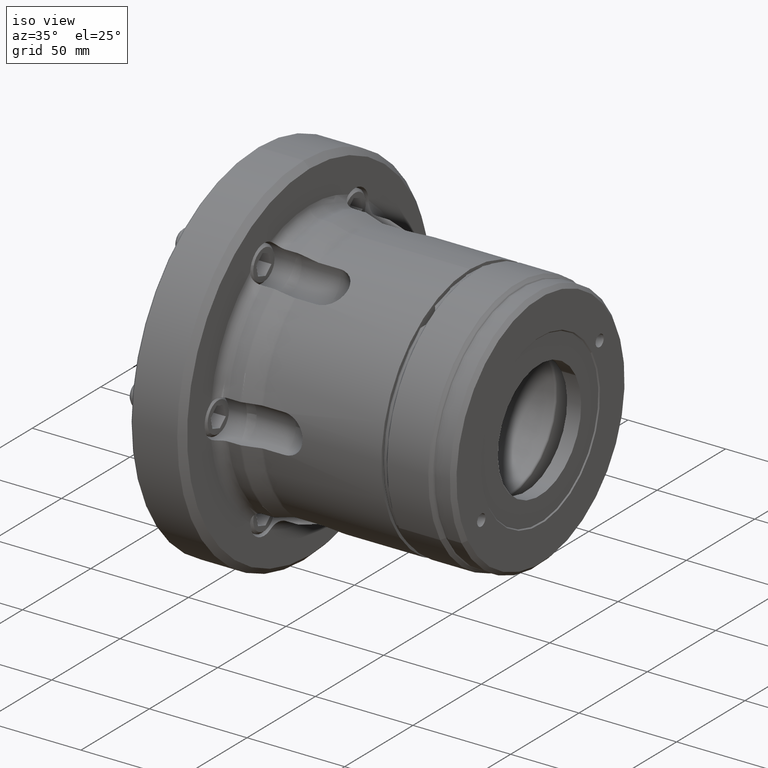
[diagram: clean part render]
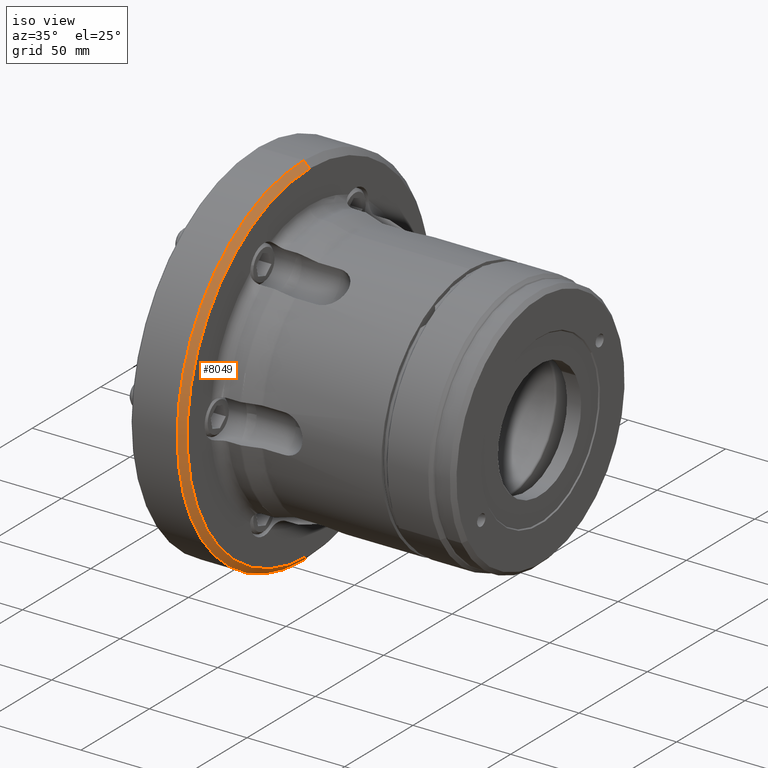
[diagram: same view with one face highlighted and labeled with its STEP entity id]
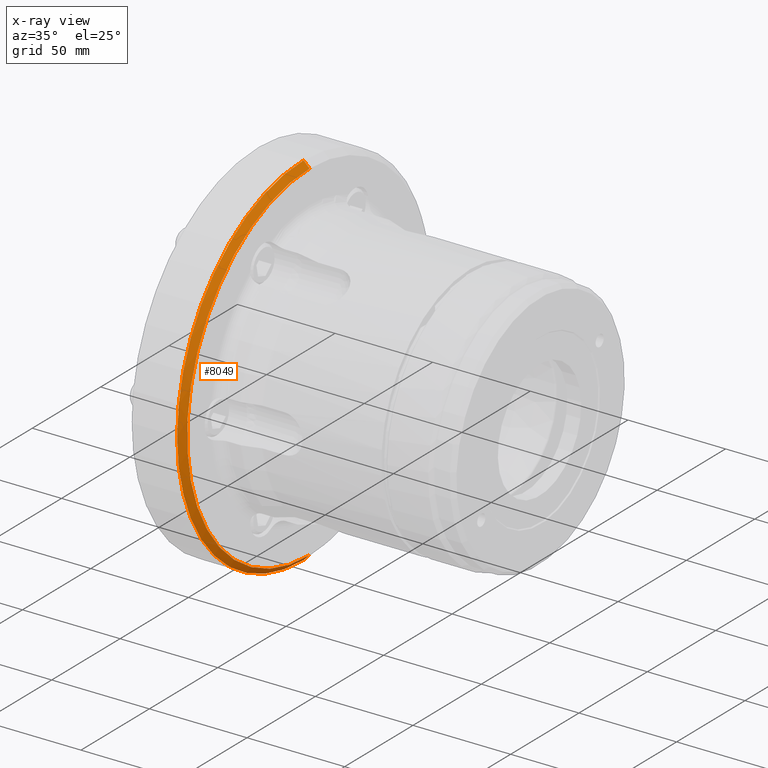
[diagram: x-ray of the same camera — body ghosted, the highlighted face saturated]
A machine part, iso view. The second image highlights one B-rep face of the part: STEP entity #8049.
The next image is the same camera in x-ray: the body ghosted, the highlighted face saturated — about 0% of this face is hidden behind the body in this view.
In plain terms, the highlighted conical surface has half-angle 45 deg.
Its self-contained STEP definition (entity closure, byte-faithful):
#1031 = EDGE_CURVE ( 'NONE', #8879, #3889, #10322, .T. ) ;
#1171 = EDGE_LOOP ( 'NONE', ( #6855, #1667, #11069, #11230 ) ) ;
#1667 = ORIENTED_EDGE ( 'NONE', *, *, #1031, .F. ) ;
#3048 = EDGE_CURVE ( 'NONE', #11462, #11302, #5226, .T. ) ;
#3049 = AXIS2_PLACEMENT_3D ( 'NONE', #8001, #7072, #6986 ) ;
#3137 = DIRECTION ( 'NONE',  ( -0.7071067811865459100, 8.659560562354952600E-017, -0.7071067811865491300 ) ) ;
#3258 = CARTESIAN_POINT ( 'NONE',  ( 27.00000000000000400, 0.0000000000000000000, 0.0000000000000000000 ) ) ;
#3771 = AXIS2_PLACEMENT_3D ( 'NONE', #9644, #10245, #11785 ) ;
#3797 = DIRECTION ( 'NONE',  ( -0.7071067811865459100, 0.0000000000000000000, 0.7071067811865491300 ) ) ;
#3889 = VERTEX_POINT ( 'NONE', #8670 ) ;
#4164 = DIRECTION ( 'NONE',  ( 0.0000000000000000000, 0.0000000000000000000, 1.000000000000000000 ) ) ;
#5041 = VECTOR ( 'NONE', #3137, 1000.000000000000100 ) ;
#5226 = CIRCLE ( 'NONE', #3771, 92.50000000000000000 ) ;
#6753 = CARTESIAN_POINT ( 'NONE',  ( 24.00000000000002800, 1.132798289211301500E-014, -92.50000000000000000 ) ) ;
#6789 = EDGE_CURVE ( 'NONE', #3889, #11462, #7484, .T. ) ;
#6855 = ORIENTED_EDGE ( 'NONE', *, *, #6789, .F. ) ;
#6986 = DIRECTION ( 'NONE',  ( 0.0000000000000000000, 0.0000000000000000000, 1.000000000000000000 ) ) ;
#7072 = DIRECTION ( 'NONE',  ( -1.000000000000000000, -0.0000000000000000000, -0.0000000000000000000 ) ) ;
#7484 = LINE ( 'NONE', #6753, #5041 ) ;
#8001 = CARTESIAN_POINT ( 'NONE',  ( 24.00000000000002800, 0.0000000000000000000, 0.0000000000000000000 ) ) ;
#8049 = ADVANCED_FACE ( 'NONE', ( #9667 ), #11546, .T. ) ;
#8670 = CARTESIAN_POINT ( 'NONE',  ( 27.00000000000000400, 1.114428587224091300E-014, -89.50000000000001400 ) ) ;
#8712 = EDGE_CURVE ( 'NONE', #8879, #11302, #11536, .T. ) ;
#8879 = VERTEX_POINT ( 'NONE', #11356 ) ;
#9051 = VECTOR ( 'NONE', #3797, 1000.000000000000100 ) ;
#9292 = CARTESIAN_POINT ( 'NONE',  ( 24.00000000000002800, 0.0000000000000000000, 92.50000000000000000 ) ) ;
#9299 = CARTESIAN_POINT ( 'NONE',  ( 24.00000000000002800, 1.132798289211301700E-014, -92.50000000000000000 ) ) ;
#9644 = CARTESIAN_POINT ( 'NONE',  ( 24.00000000000002800, 0.0000000000000000000, 0.0000000000000000000 ) ) ;
#9667 = FACE_OUTER_BOUND ( 'NONE', #1171, .T. ) ;
#9694 = DIRECTION ( 'NONE',  ( 1.000000000000000000, 0.0000000000000000000, 0.0000000000000000000 ) ) ;
#10054 = CARTESIAN_POINT ( 'NONE',  ( 24.00000000000002800, 0.0000000000000000000, 92.50000000000000000 ) ) ;
#10245 = DIRECTION ( 'NONE',  ( -1.000000000000000000, -0.0000000000000000000, -0.0000000000000000000 ) ) ;
#10322 = CIRCLE ( 'NONE', #10703, 89.50000000000001400 ) ;
#10703 = AXIS2_PLACEMENT_3D ( 'NONE', #3258, #9694, #4164 ) ;
#11069 = ORIENTED_EDGE ( 'NONE', *, *, #8712, .T. ) ;
#11230 = ORIENTED_EDGE ( 'NONE', *, *, #3048, .F. ) ;
#11302 = VERTEX_POINT ( 'NONE', #10054 ) ;
#11356 = CARTESIAN_POINT ( 'NONE',  ( 27.00000000000000400, 0.0000000000000000000, 89.50000000000001400 ) ) ;
#11462 = VERTEX_POINT ( 'NONE', #9299 ) ;
#11536 = LINE ( 'NONE', #9292, #9051 ) ;
#11546 = CONICAL_SURFACE ( 'NONE', #3049, 92.50000000000000000, 0.7853981633974506100 ) ;
#11785 = DIRECTION ( 'NONE',  ( 0.0000000000000000000, 0.0000000000000000000, 1.000000000000000000 ) ) ;